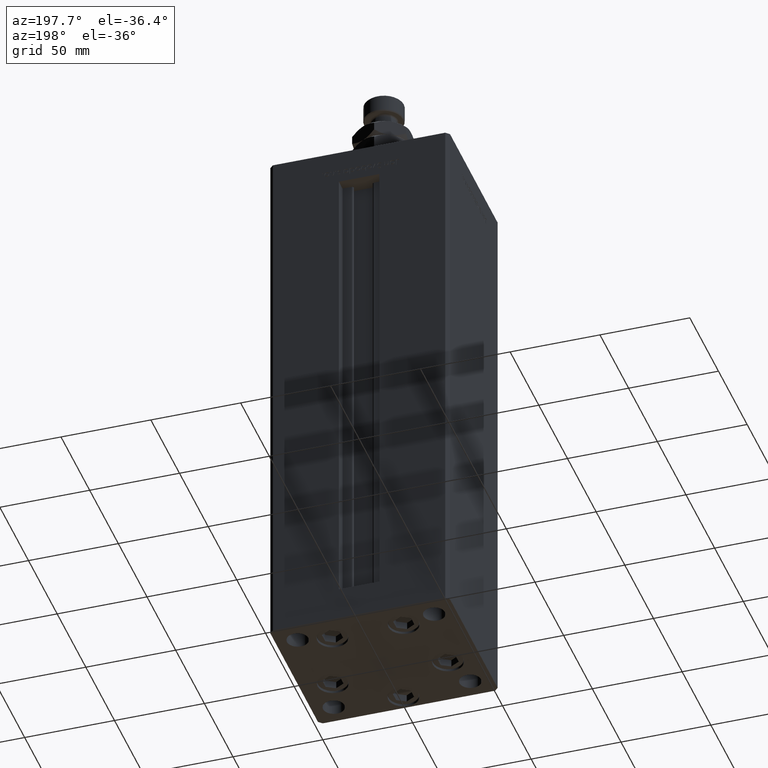
[diagram: clean part render]
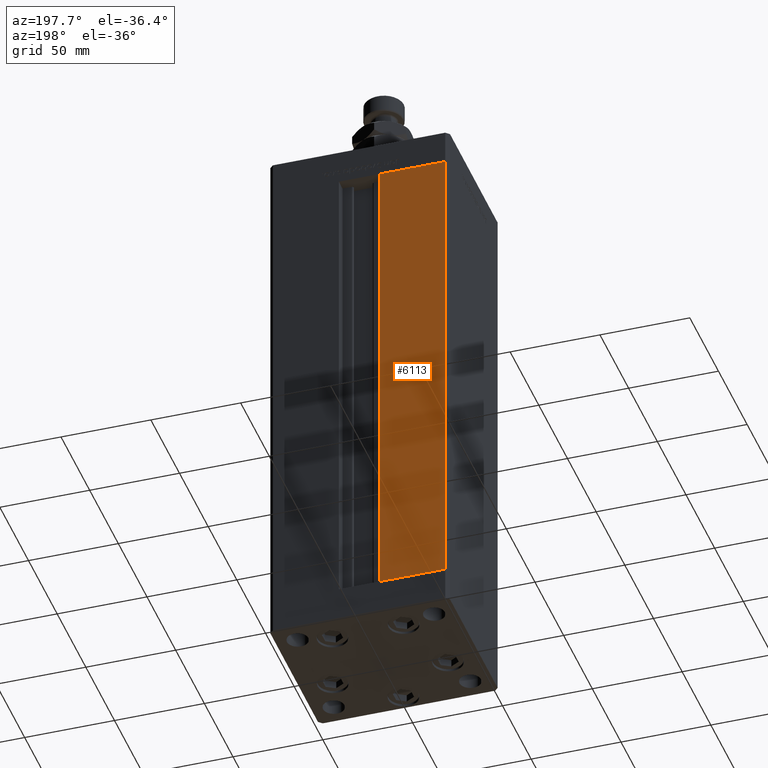
[diagram: same view with one face highlighted and labeled with its STEP entity id]
A machine part, auxiliary view. The second image highlights one B-rep face of the part: STEP entity #6113.
In plain terms, the highlighted planar face has unit normal (0, -1, 0).
Its self-contained STEP definition (entity closure, byte-faithful):
#717 = CARTESIAN_POINT ( 'NONE',  ( -48.00000000000000711, 43.50000000000000000, 268.5000000000000000 ) ) ;
#1301 = CARTESIAN_POINT ( 'NONE',  ( -11.24999999999999822, 43.50000000000000000, 0.000000000000000000 ) ) ;
#3091 = VECTOR ( 'NONE', #21916, 1000.000000000000000 ) ;
#4752 = EDGE_CURVE ( 'NONE', #12434, #10402, #20864, .T. ) ;
#6113 = ADVANCED_FACE ( 'NONE', ( #33000 ), #20750, .F. ) ;
#6209 = DIRECTION ( 'NONE',  ( -0.000000000000000000, -0.000000000000000000, 1.000000000000000000 ) ) ;
#7270 = ORIENTED_EDGE ( 'NONE', *, *, #12427, .T. ) ;
#7541 = VECTOR ( 'NONE', #6209, 1000.000000000000000 ) ;
#7809 = CARTESIAN_POINT ( 'NONE',  ( -48.00000000000000711, 43.50000000000000000, 0.000000000000000000 ) ) ;
#8686 = CARTESIAN_POINT ( 'NONE',  ( -48.00000000000000711, 43.50000000000000000, 268.5000000000000000 ) ) ;
#9166 = ORIENTED_EDGE ( 'NONE', *, *, #4752, .F. ) ;
#10142 = EDGE_CURVE ( 'NONE', #50302, #10402, #38591, .T. ) ;
#10402 = VERTEX_POINT ( 'NONE', #7809 ) ;
#12427 = EDGE_CURVE ( 'NONE', #12434, #29925, #20933, .T. ) ;
#12434 = VERTEX_POINT ( 'NONE', #8686 ) ;
#12552 = EDGE_CURVE ( 'NONE', #50302, #29925, #22535, .T. ) ;
#19268 = CARTESIAN_POINT ( 'NONE',  ( -11.24999999999999822, 43.50000000000000000, 0.000000000000000000 ) ) ;
#20750 = PLANE ( 'NONE',  #37011 ) ;
#20864 = LINE ( 'NONE', #717, #3091 ) ;
#20933 = LINE ( 'NONE', #34543, #39681 ) ;
#21916 = DIRECTION ( 'NONE',  ( -0.000000000000000000, -0.000000000000000000, -1.000000000000000000 ) ) ;
#22535 = LINE ( 'NONE', #19268, #7541 ) ;
#23533 = CARTESIAN_POINT ( 'NONE',  ( -11.24999999999999822, 43.50000000000000000, 0.000000000000000000 ) ) ;
#28897 = CARTESIAN_POINT ( 'NONE',  ( -11.24999999999999822, 43.50000000000000000, 268.5000000000000000 ) ) ;
#29925 = VERTEX_POINT ( 'NONE', #40014 ) ;
#30258 = ORIENTED_EDGE ( 'NONE', *, *, #10142, .T. ) ;
#33000 = FACE_OUTER_BOUND ( 'NONE', #41013, .T. ) ;
#33727 = ORIENTED_EDGE ( 'NONE', *, *, #12552, .F. ) ;
#34523 = DIRECTION ( 'NONE',  ( -1.000000000000000000, 0.000000000000000000, 0.000000000000000000 ) ) ;
#34543 = CARTESIAN_POINT ( 'NONE',  ( -11.24999999999999822, 43.50000000000000000, 268.5000000000000000 ) ) ;
#37011 = AXIS2_PLACEMENT_3D ( 'NONE', #28897, #52931, #45538 ) ;
#37550 = DIRECTION ( 'NONE',  ( 1.000000000000000000, 0.000000000000000000, 0.000000000000000000 ) ) ;
#38591 = LINE ( 'NONE', #1301, #50211 ) ;
#39681 = VECTOR ( 'NONE', #37550, 1000.000000000000000 ) ;
#40014 = CARTESIAN_POINT ( 'NONE',  ( -11.24999999999999822, 43.50000000000000000, 268.5000000000000000 ) ) ;
#41013 = EDGE_LOOP ( 'NONE', ( #7270, #33727, #30258, #9166 ) ) ;
#45538 = DIRECTION ( 'NONE',  ( 0.000000000000000000, -0.000000000000000000, -1.000000000000000000 ) ) ;
#50211 = VECTOR ( 'NONE', #34523, 1000.000000000000000 ) ;
#50302 = VERTEX_POINT ( 'NONE', #23533 ) ;
#52931 = DIRECTION ( 'NONE',  ( 0.000000000000000000, -1.000000000000000000, 0.000000000000000000 ) ) ;